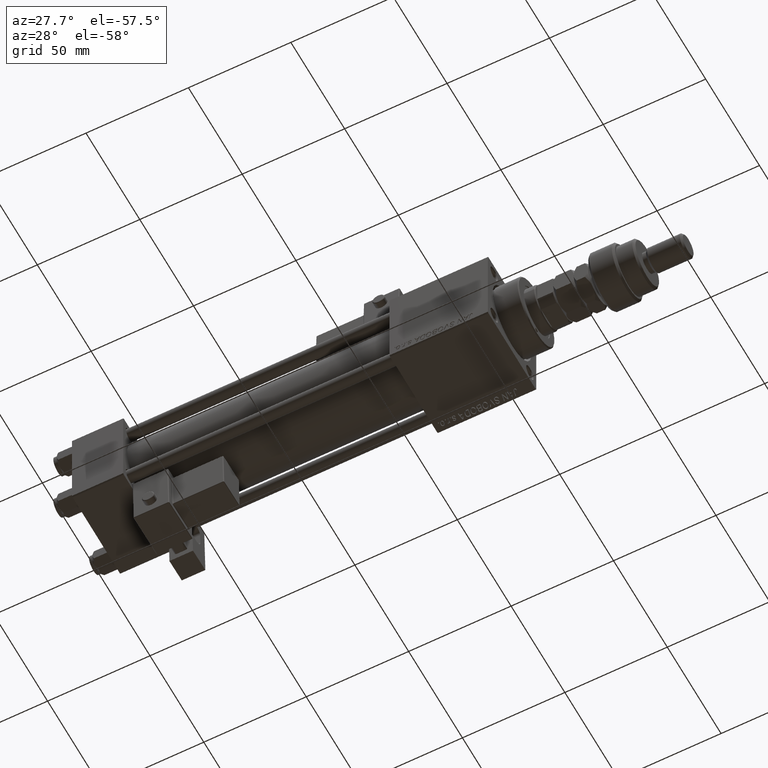
[diagram: clean part render]
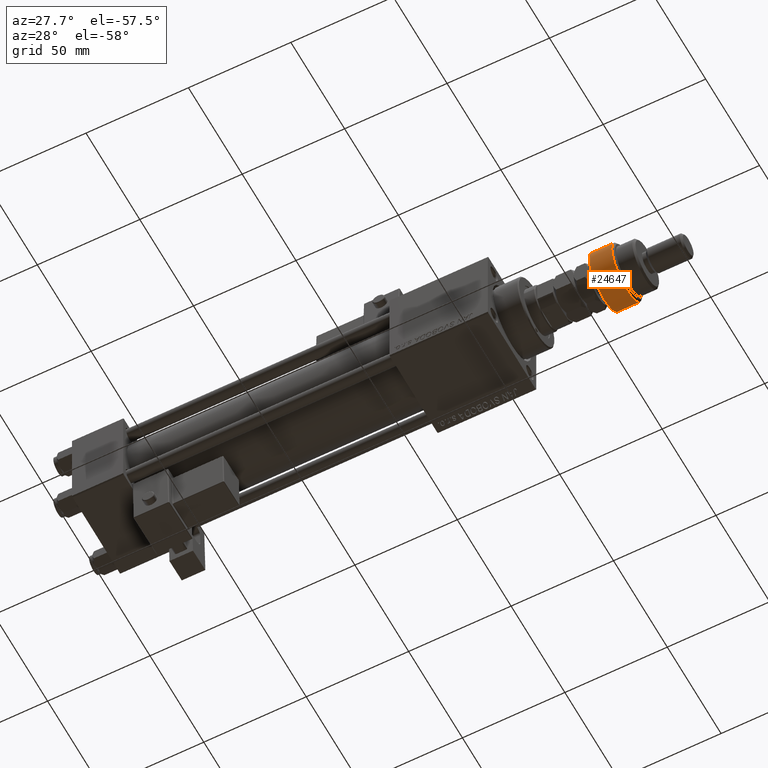
[diagram: same view with one face highlighted and labeled with its STEP entity id]
A machine part, auxiliary view. The second image highlights one B-rep face of the part: STEP entity #24647.
In plain terms, the highlighted cylindrical surface (edge-blend (fillet) strip) has radius 14 mm, axis along (-1, -0, 0).
Its self-contained STEP definition (entity closure, byte-faithful):
#578 = AXIS2_PLACEMENT_3D ( 'NONE', #45812, #11904, #46360 ) ;
#2130 = VERTEX_POINT ( 'NONE', #7547 ) ;
#2878 = EDGE_CURVE ( 'NONE', #22691, #26598, #19325, .T. ) ;
#3183 = VECTOR ( 'NONE', #53297, 1000.000000000000000 ) ;
#3365 = CARTESIAN_POINT ( 'NONE',  ( 0.000000000000000000, 0.000000000000000000, 13.00000000000000000 ) ) ;
#7547 = CARTESIAN_POINT ( 'NONE',  ( -12.64911064067351809, 6.000000000000000000, 1.000000000000021760 ) ) ;
#8217 = ORIENTED_EDGE ( 'NONE', *, *, #44351, .F. ) ;
#8601 = DIRECTION ( 'NONE',  ( 0.000000000000000000, 0.000000000000000000, -1.000000000000000000 ) ) ;
#9890 = CARTESIAN_POINT ( 'NONE',  ( -12.64911064067351809, -5.999999999999999112, 12.00000000000002842 ) ) ;
#11904 = DIRECTION ( 'NONE',  ( -0.000000000000000000, -0.000000000000000000, 1.000000000000000000 ) ) ;
#13769 = EDGE_CURVE ( 'NONE', #27545, #35081, #23850, .T. ) ;
#15042 = ORIENTED_EDGE ( 'NONE', *, *, #19600, .T. ) ;
#16283 = ORIENTED_EDGE ( 'NONE', *, *, #13769, .T. ) ;
#18869 = CARTESIAN_POINT ( 'NONE',  ( -12.64911064067351809, -5.999999999999999112, 1.000000000000021760 ) ) ;
#19021 = CARTESIAN_POINT ( 'NONE',  ( 14.00000000000000000, 0.000000000000000000, 1.000000000000018208 ) ) ;
#19325 = CIRCLE ( 'NONE', #38981, 14.00000000000000000 ) ;
#19600 = EDGE_CURVE ( 'NONE', #35081, #2130, #41077, .T. ) ;
#20724 = VECTOR ( 'NONE', #26736, 1000.000000000000000 ) ;
#21585 = DIRECTION ( 'NONE',  ( -0.000000000000000000, -0.000000000000000000, -1.000000000000000000 ) ) ;
#22691 = VERTEX_POINT ( 'NONE', #45594 ) ;
#22875 = ORIENTED_EDGE ( 'NONE', *, *, #35566, .T. ) ;
#23223 = AXIS2_PLACEMENT_3D ( 'NONE', #38097, #38924, #33901 ) ;
#23850 = CIRCLE ( 'NONE', #578, 14.00000000000000000 ) ;
#24647 = ADVANCED_FACE ( 'NONE', ( #37547 ), #47066, .T. ) ;
#25244 = EDGE_LOOP ( 'NONE', ( #8217, #41177, #22875, #16283, #15042 ) ) ;
#25699 = DIRECTION ( 'NONE',  ( 1.000000000000000000, 0.000000000000000000, 0.000000000000000000 ) ) ;
#25779 = DIRECTION ( 'NONE',  ( -1.000000000000000000, 0.000000000000000000, 0.000000000000000000 ) ) ;
#26598 = VERTEX_POINT ( 'NONE', #9890 ) ;
#26736 = DIRECTION ( 'NONE',  ( -0.000000000000000000, -0.000000000000000000, -1.000000000000000000 ) ) ;
#27252 = LINE ( 'NONE', #31461, #3183 ) ;
#27545 = VERTEX_POINT ( 'NONE', #18869 ) ;
#31461 = CARTESIAN_POINT ( 'NONE',  ( -12.64911064067351809, 6.000000000000000000, 14.50000000000000000 ) ) ;
#33901 = DIRECTION ( 'NONE',  ( 1.000000000000000000, 0.000000000000000000, 0.000000000000000000 ) ) ;
#35081 = VERTEX_POINT ( 'NONE', #19021 ) ;
#35566 = EDGE_CURVE ( 'NONE', #26598, #27545, #48021, .T. ) ;
#37547 = FACE_OUTER_BOUND ( 'NONE', #25244, .T. ) ;
#38097 = CARTESIAN_POINT ( 'NONE',  ( 0.000000000000000000, 0.000000000000000000, 1.000000000000018208 ) ) ;
#38924 = DIRECTION ( 'NONE',  ( -0.000000000000000000, -0.000000000000000000, 1.000000000000000000 ) ) ;
#38981 = AXIS2_PLACEMENT_3D ( 'NONE', #47539, #8601, #25699 ) ;
#40238 = AXIS2_PLACEMENT_3D ( 'NONE', #3365, #21585, #25779 ) ;
#41077 = CIRCLE ( 'NONE', #23223, 14.00000000000000000 ) ;
#41177 = ORIENTED_EDGE ( 'NONE', *, *, #2878, .T. ) ;
#44351 = EDGE_CURVE ( 'NONE', #22691, #2130, #27252, .T. ) ;
#45594 = CARTESIAN_POINT ( 'NONE',  ( -12.64911064067351809, 6.000000000000000000, 12.00000000000002842 ) ) ;
#45812 = CARTESIAN_POINT ( 'NONE',  ( 0.000000000000000000, 0.000000000000000000, 1.000000000000018208 ) ) ;
#46360 = DIRECTION ( 'NONE',  ( 1.000000000000000000, 0.000000000000000000, 0.000000000000000000 ) ) ;
#47066 = CYLINDRICAL_SURFACE ( 'NONE', #40238, 14.00000000000000000 ) ;
#47539 = CARTESIAN_POINT ( 'NONE',  ( 0.000000000000000000, 0.000000000000000000, 12.00000000000002842 ) ) ;
#48021 = LINE ( 'NONE', #53813, #20724 ) ;
#53297 = DIRECTION ( 'NONE',  ( -0.000000000000000000, -0.000000000000000000, -1.000000000000000000 ) ) ;
#53813 = CARTESIAN_POINT ( 'NONE',  ( -12.64911064067351809, -5.999999999999999112, 14.50000000000000000 ) ) ;